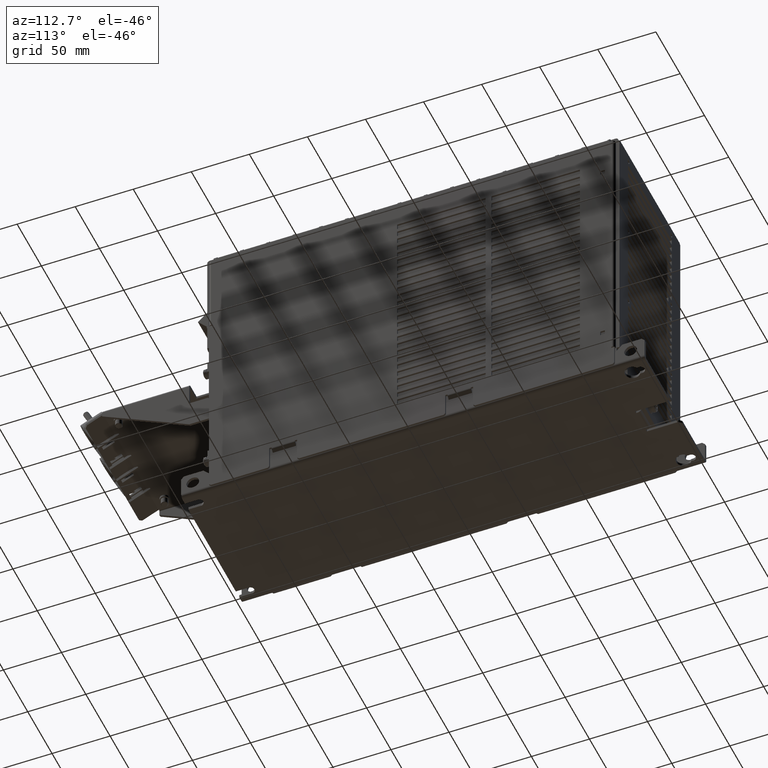
[diagram: clean part render]
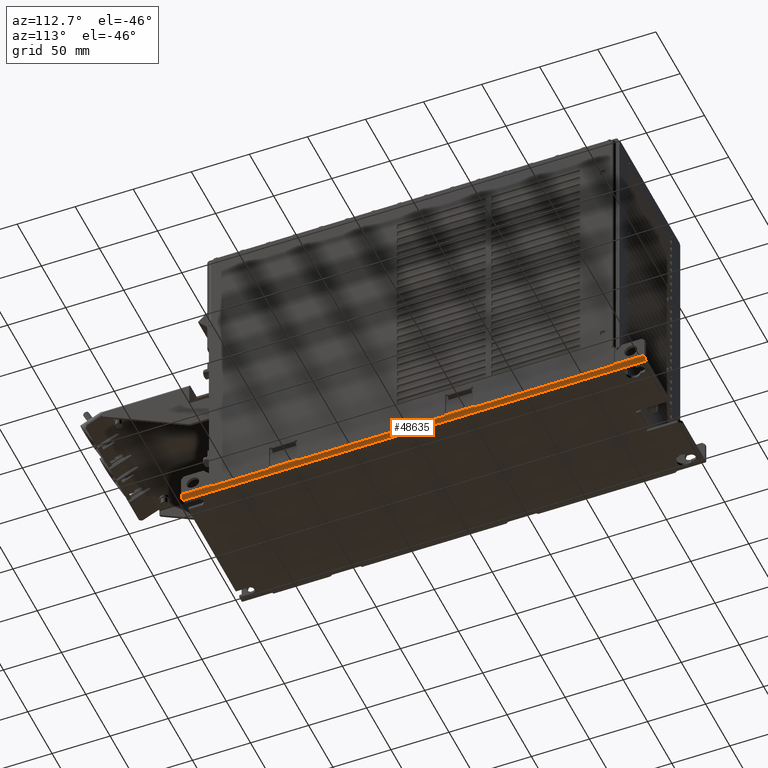
[diagram: same view with one face highlighted and labeled with its STEP entity id]
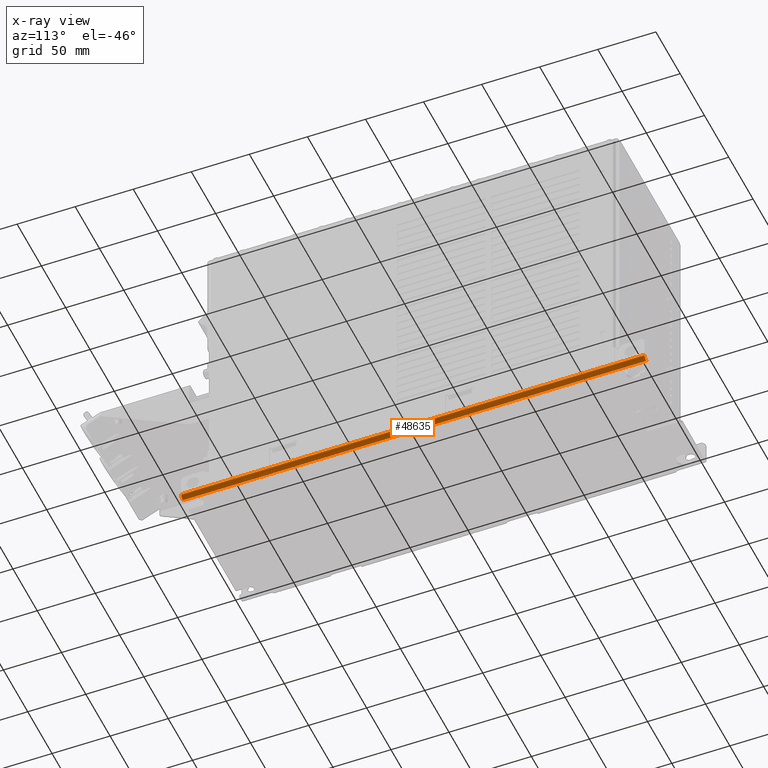
[diagram: x-ray of the same camera — body ghosted, the highlighted face saturated]
A machine part, auxiliary view. The second image highlights one B-rep face of the part: STEP entity #48635.
The next image is the same camera in x-ray: the body ghosted, the highlighted face saturated — about 0% of this face is hidden behind the body in this view.
In plain terms, the highlighted cylindrical surface (edge-blend (fillet) strip) has radius 3.5 mm, axis along (0, 1, 0).
Its self-contained STEP definition (entity closure, byte-faithful):
#3951=DIRECTION('',(0.E0,1.E0,0.E0));
#3952=VECTOR('',#3951,3.99E-1);
#3953=CARTESIAN_POINT('',(6.E-2,-1.995E-1,-2.5E-3));
#3954=LINE('',#3953,#3952);
#4030=CARTESIAN_POINT('',(6.E-2,1.995E-1,1.E-3));
#4031=DIRECTION('',(0.E0,-1.E0,0.E0));
#4032=DIRECTION('',(0.E0,0.E0,-1.E0));
#4033=AXIS2_PLACEMENT_3D('',#4030,#4031,#4032);
#4137=DIRECTION('',(0.E0,1.E0,0.E0));
#4138=VECTOR('',#4137,5.1E-2);
#4139=CARTESIAN_POINT('',(6.35E-2,-1.745E-1,1.E-3));
#4140=LINE('',#4139,#4138);
#4141=DIRECTION('',(0.E0,1.E0,0.E0));
#4142=VECTOR('',#4141,2.5E-2);
#4143=CARTESIAN_POINT('',(6.35E-2,-1.235E-1,1.E-3));
#4144=LINE('',#4143,#4142);
#4145=DIRECTION('',(0.E0,1.E0,0.E0));
#4146=VECTOR('',#4145,1.265E-1);
#4147=CARTESIAN_POINT('',(6.35E-2,-9.85E-2,1.E-3));
#4148=LINE('',#4147,#4146);
#4149=DIRECTION('',(0.E0,1.E0,0.E0));
#4150=VECTOR('',#4149,2.5E-2);
#4151=CARTESIAN_POINT('',(6.35E-2,2.8E-2,1.E-3));
#4152=LINE('',#4151,#4150);
#4153=DIRECTION('',(0.E0,1.E0,0.E0));
#4154=VECTOR('',#4153,1.205E-1);
#4155=CARTESIAN_POINT('',(6.35E-2,5.3E-2,9.999999999999E-4));
#4156=LINE('',#4155,#4154);
#4157=DIRECTION('',(0.E0,1.E0,0.E0));
#4158=VECTOR('',#4157,2.6E-2);
#4159=CARTESIAN_POINT('',(6.35E-2,1.735E-1,1.E-3));
#4160=LINE('',#4159,#4158);
#4161=DIRECTION('',(0.E0,1.E0,0.E0));
#4162=VECTOR('',#4161,2.5E-2);
#4163=CARTESIAN_POINT('',(6.35E-2,-1.995E-1,1.E-3));
#4164=LINE('',#4163,#4162);
#5173=CARTESIAN_POINT('',(6.E-2,-1.995E-1,1.E-3));
#5174=DIRECTION('',(0.E0,1.E0,0.E0));
#5175=DIRECTION('',(1.E0,0.E0,0.E0));
#5176=AXIS2_PLACEMENT_3D('',#5173,#5174,#5175);
#33549=CARTESIAN_POINT('',(6.35E-2,-1.745E-1,1.E-3));
#33550=CARTESIAN_POINT('',(6.35E-2,-1.235E-1,1.E-3));
#33551=VERTEX_POINT('',#33549);
#33552=VERTEX_POINT('',#33550);
#33557=CARTESIAN_POINT('',(6.35E-2,-9.85E-2,1.E-3));
#33558=CARTESIAN_POINT('',(6.35E-2,2.8E-2,1.E-3));
#33559=VERTEX_POINT('',#33557);
#33560=VERTEX_POINT('',#33558);
#33565=CARTESIAN_POINT('',(6.35E-2,5.3E-2,9.999999999999E-4));
#33566=CARTESIAN_POINT('',(6.35E-2,1.735E-1,1.E-3));
#33567=VERTEX_POINT('',#33565);
#33568=VERTEX_POINT('',#33566);
#35136=CARTESIAN_POINT('',(6.35E-2,1.995E-1,1.E-3));
#35137=VERTEX_POINT('',#35136);
#35138=CARTESIAN_POINT('',(6.E-2,1.995E-1,-2.5E-3));
#35139=VERTEX_POINT('',#35138);
#35140=CARTESIAN_POINT('',(6.E-2,-1.995E-1,-2.5E-3));
#35141=VERTEX_POINT('',#35140);
#35142=CARTESIAN_POINT('',(6.35E-2,-1.995E-1,1.E-3));
#35143=VERTEX_POINT('',#35142);
#48614=CARTESIAN_POINT('',(6.E-2,1.995E-1,1.E-3));
#48615=DIRECTION('',(0.E0,1.E0,0.E0));
#48616=DIRECTION('',(1.E0,0.E0,0.E0));
#48617=AXIS2_PLACEMENT_3D('',#48614,#48615,#48616);
#48618=CYLINDRICAL_SURFACE('',#48617,3.5E-3);
#48620=ORIENTED_EDGE('',*,*,#48619,.T.);
#48622=ORIENTED_EDGE('',*,*,#48621,.T.);
#48624=ORIENTED_EDGE('',*,*,#48623,.T.);
#48625=ORIENTED_EDGE('',*,*,#43693,.T.);
#48626=ORIENTED_EDGE('',*,*,#48592,.T.);
#48627=ORIENTED_EDGE('',*,*,#48542,.T.);
#48628=ORIENTED_EDGE('',*,*,#48363,.F.);
#48629=ORIENTED_EDGE('',*,*,#48303,.F.);
#48631=ORIENTED_EDGE('',*,*,#48630,.F.);
#48632=ORIENTED_EDGE('',*,*,#44617,.T.);
#48633=EDGE_LOOP('',(#48620,#48622,#48624,#48625,#48626,#48627,#48628,#48629,
#48631,#48632));
#48634=FACE_OUTER_BOUND('',#48633,.F.);
#48635=ADVANCED_FACE('',(#48634),#48618,.T.);
#4034=CIRCLE('',#4033,3.5E-3);
#5177=CIRCLE('',#5176,3.5E-3);
#43693=EDGE_CURVE('',#33560,#33567,#4152,.T.);
#44617=EDGE_CURVE('',#35143,#33551,#4164,.T.);
#48303=EDGE_CURVE('',#35141,#35139,#3954,.T.);
#48363=EDGE_CURVE('',#35139,#35137,#4034,.T.);
#48542=EDGE_CURVE('',#33568,#35137,#4160,.T.);
#48592=EDGE_CURVE('',#33567,#33568,#4156,.T.);
#48619=EDGE_CURVE('',#33551,#33552,#4140,.T.);
#48621=EDGE_CURVE('',#33552,#33559,#4144,.T.);
#48623=EDGE_CURVE('',#33559,#33560,#4148,.T.);
#48630=EDGE_CURVE('',#35143,#35141,#5177,.T.);